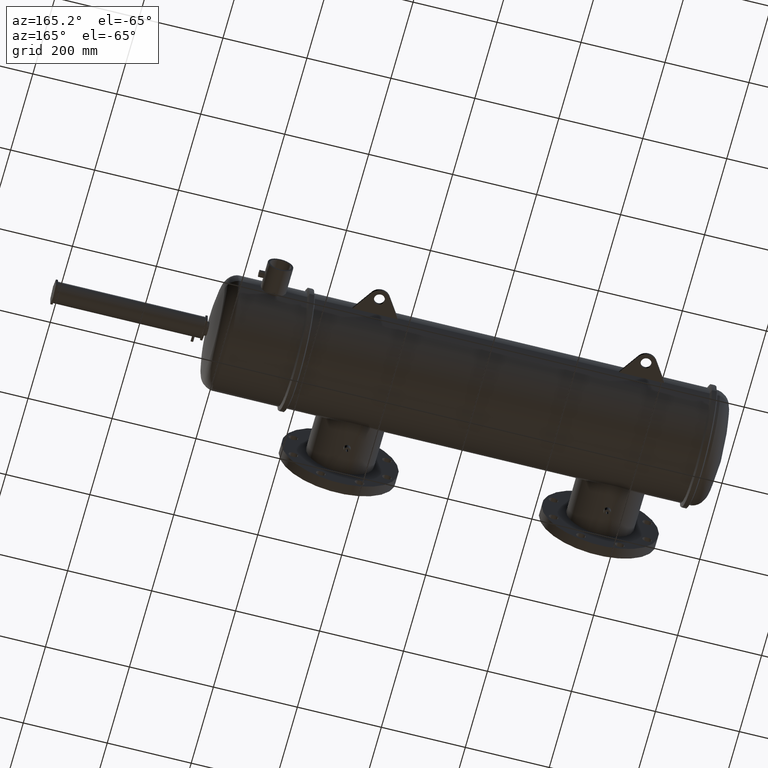
[diagram: clean part render]
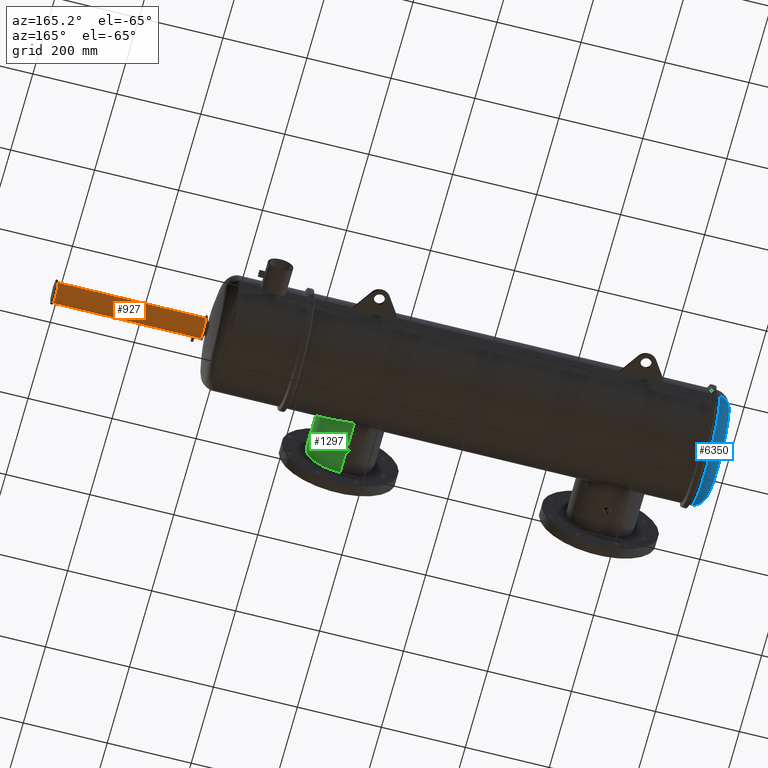
[diagram: same view with three faces highlighted in distinct colors, each labeled with its STEP entity id]
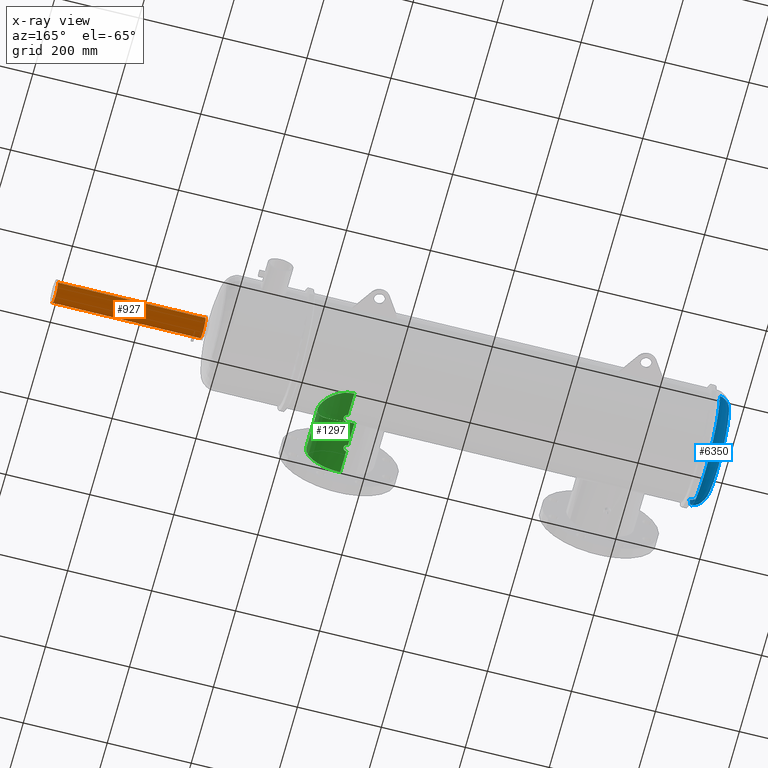
[diagram: x-ray of the same camera — body ghosted, the three highlighted faces saturated]
A machine part, auxiliary view with three faces highlighted in distinct colors.
The next image is the same camera in x-ray (body ghosted, the three faces saturated) — at least one of them is partly hidden behind the body in this view.
Their STEP definitions:

[orange] entity #927 — the highlighted cylindrical surface (edge-blend (fillet) strip) has radius 25.4 mm, axis along (-1, 0, -0).
#127 = DIRECTION ( 'NONE',  ( -1.000000000000000000, 8.273921759108280900E-016, -0.0000000000000000000 ) ) ;
#146 = VERTEX_POINT ( 'NONE', #2738 ) ;
#167 = VERTEX_POINT ( 'NONE', #3346 ) ;
#174 = DIRECTION ( 'NONE',  ( -1.000000000000000000, 8.273921759108280900E-016, -0.0000000000000000000 ) ) ;
#220 = DIRECTION ( 'NONE',  ( -1.000000000000000000, 8.273921759108280900E-016, -0.0000000000000000000 ) ) ;
#284 = ORIENTED_EDGE ( 'NONE', *, *, #7275, .F. ) ;
#563 = CARTESIAN_POINT ( 'NONE',  ( 49.36850591489619000, -0.9950547414637676000, -0.09943980638452125400 ) ) ;
#605 = CARTESIAN_POINT ( 'NONE',  ( 5.449043691375895500E-006, -1.000000725248668500, 0.0000000000000000000 ) ) ;
#612 = CARTESIAN_POINT ( 'NONE',  ( 49.41651493162598300, -0.9998983702911463700, -0.01642997529586135900 ) ) ;
#654 = CARTESIAN_POINT ( 'NONE',  ( 49.30870801714559100, -0.9922605637786310300, -0.1241893311279821200 ) ) ;
#766 = EDGE_LOOP ( 'NONE', ( #5126, #6116, #5081, #284, #2508, #1396, #2776 ) ) ;
#818 = DIRECTION ( 'NONE',  ( -1.000000000000000000, 8.273921759108280900E-016, -0.0000000000000000000 ) ) ;
#927 = ADVANCED_FACE ( 'NONE', ( #5557 ), #6459, .T. ) ;
#1004 = CARTESIAN_POINT ( 'NONE',  ( 49.29232609451075600, -0.9921574751184469900, -0.1250000000000234000 ) ) ;
#1131 = CARTESIAN_POINT ( 'NONE',  ( 49.40075779089180200, -0.9980547135683223200, -0.06273009445682405100 ) ) ;
#1233 = CARTESIAN_POINT ( 'NONE',  ( 49.32468735658665800, -0.9926529655812724700, -0.1210128343279488200 ) ) ;
#1396 = ORIENTED_EDGE ( 'NONE', *, *, #5294, .T. ) ;
#1669 = CARTESIAN_POINT ( 'NONE',  ( 49.21609964376966700, -0.9950583241277222200, -0.09940410716326034100 ) ) ;
#1699 = CARTESIAN_POINT ( 'NONE',  ( 49.37492721658028900, -0.9955734581031983100, -0.09417169494930381600 ) ) ;
#1777 = CARTESIAN_POINT ( 'NONE',  ( 5.449043693030681900E-006, 1.000001354509967100, 1.224648072632231200E-016 ) ) ;
#1793 = CARTESIAN_POINT ( 'NONE',  ( 49.41732609451078400, -1.000000725248709500, 0.0000000000000000000 ) ) ;
#1811 = DIRECTION ( 'NONE',  ( 0.0000000000000000000, -1.000000000000000000, 0.0000000000000000000 ) ) ;
#2161 = LINE ( 'NONE', #1777, #3898 ) ;
#2175 = DIRECTION ( 'NONE',  ( -8.273923440955007600E-016, -1.000000000000000000, 0.0000000000000000000 ) ) ;
#2276 = AXIS2_PLACEMENT_3D ( 'NONE', #4817, #174, #1811 ) ;
#2327 = CARTESIAN_POINT ( 'NONE',  ( 49.33262847311190300, -0.9929469716791553500, -0.1186074350496956500 ) ) ;
#2347 = CARTESIAN_POINT ( 'NONE',  ( 49.34775207863209800, -0.9936757248233146800, -0.1123386204924962800 ) ) ;
#2423 = CARTESIAN_POINT ( 'NONE',  ( 62.52232943053620300, 3.146305976155033700E-007, 0.0000000000000000000 ) ) ;
#2508 = ORIENTED_EDGE ( 'NONE', *, *, #2514, .F. ) ;
#2514 = EDGE_CURVE ( 'NONE', #6833, #3380, #3858, .T. ) ;
#2738 = CARTESIAN_POINT ( 'NONE',  ( 49.41732609451078400, -1.000000725248709500, 0.0000000000000000000 ) ) ;
#2743 = CARTESIAN_POINT ( 'NONE',  ( 49.19814792285784200, -0.9966007445920600500, -0.08259485666819259300 ) ) ;
#2754 = CARTESIAN_POINT ( 'NONE',  ( 49.20967148103270700, -0.9955778733371009000, -0.09412573099167048700 ) ) ;
#2771 = CARTESIAN_POINT ( 'NONE',  ( 49.16732609451073400, -1.000000725248709300, -1.709219332989494500E-024 ) ) ;
#2776 = ORIENTED_EDGE ( 'NONE', *, *, #4875, .F. ) ;
#2793 = CARTESIAN_POINT ( 'NONE',  ( 5.449043692203289100E-006, 3.146306493459850400E-007, 0.0000000000000000000 ) ) ;
#2876 = DIRECTION ( 'NONE',  ( -1.000000000000000000, 8.273921759108280900E-016, -0.0000000000000000000 ) ) ;
#2939 = LINE ( 'NONE', #605, #7382 ) ;
#2946 = CARTESIAN_POINT ( 'NONE',  ( 49.35492584848461200, -0.9941072896168456900, -0.1085030457183593000 ) ) ;
#3325 = CARTESIAN_POINT ( 'NONE',  ( 49.19297761983097000, -0.9971087956839260700, -0.07630443481552394400 ) ) ;
#3346 = CARTESIAN_POINT ( 'NONE',  ( 48.68032924161777000, 1.000001354509920700, 1.224648072632234400E-016 ) ) ;
#3349 = CARTESIAN_POINT ( 'NONE',  ( 49.16811814470897000, -0.9999007606014634900, -0.01628339001047994500 ) ) ;
#3380 = VERTEX_POINT ( 'NONE', #6989 ) ;
#3672 = EDGE_CURVE ( 'NONE', #7149, #167, #2161, .T. ) ;
#3755 = AXIS2_PLACEMENT_3D ( 'NONE', #2423, #220, #5320 ) ;
#3858 = B_SPLINE_CURVE_WITH_KNOTS ( 'NONE', 3,
 ( #2771, #6850, #3349, #7415, #3908, #3942, #4534, #3325, #2743, #2754, #1669, #5733, #6259, #6883, #7447, #5058, #6219, #1004 ),
 .UNSPECIFIED., .F., .F.,
 ( 4, 2, 2, 2, 2, 2, 2, 2, 4 ),
 ( 0.009936212067760566100, 0.01055735665145645300, 0.01117850123515234200, 0.01179964581884823000, 0.01242079040254411900, 0.01304193498624000600, 0.01366307956993589300, 0.01428422415363178300, 0.01490536873732767000 ),
 .UNSPECIFIED. ) ;
#3898 = VECTOR ( 'NONE', #4669, 39.37007874015748100 ) ;
#3908 = CARTESIAN_POINT ( 'NONE',  ( 49.17372709953984600, -0.9992159845160715200, -0.04031897075962189600 ) ) ;
#3942 = CARTESIAN_POINT ( 'NONE',  ( 49.17996209565167500, -0.9984951330865461400, -0.05536851787453043300 ) ) ;
#4003 = CARTESIAN_POINT ( 'NONE',  ( 49.38644225243540100, -0.9965949105088535200, -0.08266439568686818900 ) ) ;
#4534 = CARTESIAN_POINT ( 'NONE',  ( 49.18384580387187600, -0.9980600201729230600, -0.06264593152489533700 ) ) ;
#4548 = CARTESIAN_POINT ( 'NONE',  ( 62.52232943053620300, -1.000000725248726900, 0.0000000000000000000 ) ) ;
#4669 = DIRECTION ( 'NONE',  ( -1.000000000000000000, 8.273921759108280900E-016, -0.0000000000000000000 ) ) ;
#4691 = CARTESIAN_POINT ( 'NONE',  ( 49.41732609451079100, -1.000000725248709800, -0.008262034647050884800 ) ) ;
#4817 = CARTESIAN_POINT ( 'NONE',  ( 48.68032924161777000, 3.146306090682660300E-007, 0.0000000000000000000 ) ) ;
#4875 = EDGE_CURVE ( 'NONE', #167, #7329, #6940, .T. ) ;
#4899 = AXIS2_PLACEMENT_3D ( 'NONE', #2793, #2876, #2175 ) ;
#4972 = EDGE_CURVE ( 'NONE', #7149, #7193, #6485, .T. ) ;
#5058 = CARTESIAN_POINT ( 'NONE',  ( 49.27592469935665800, -0.9922608502591275800, -0.1241870744570196100 ) ) ;
#5081 = ORIENTED_EDGE ( 'NONE', *, *, #6511, .T. ) ;
#5126 = ORIENTED_EDGE ( 'NONE', *, *, #3672, .F. ) ;
#5184 = CARTESIAN_POINT ( 'NONE',  ( 49.41087871564846500, -0.9992104686006425500, -0.04045312961863948400 ) ) ;
#5263 = CARTESIAN_POINT ( 'NONE',  ( 49.29232609451075600, -0.9921574751184469900, -0.1250000000000234000 ) ) ;
#5294 = EDGE_CURVE ( 'NONE', #6833, #7329, #2939, .T. ) ;
#5320 = DIRECTION ( 'NONE',  ( 0.0000000000000000000, -1.000000000000000000, 0.0000000000000000000 ) ) ;
#5557 = FACE_OUTER_BOUND ( 'NONE', #766, .T. ) ;
#5733 = CARTESIAN_POINT ( 'NONE',  ( 49.22967632970282600, -0.9941104517357384200, -0.1084742148301695900 ) ) ;
#5737 = LINE ( 'NONE', #7141, #6460 ) ;
#5776 = CARTESIAN_POINT ( 'NONE',  ( 49.40463546286643700, -0.9984889740287349300, -0.05547779244085052800 ) ) ;
#5801 = CARTESIAN_POINT ( 'NONE',  ( 49.30058607050268200, -0.9921574751184369900, -0.1250000000000233700 ) ) ;
#5867 = CARTESIAN_POINT ( 'NONE',  ( 49.16732609451073400, -1.000000725248709300, -1.709219332989494500E-024 ) ) ;
#6116 = ORIENTED_EDGE ( 'NONE', *, *, #4972, .T. ) ;
#6219 = CARTESIAN_POINT ( 'NONE',  ( 49.28405866442297200, -0.9921574751184369900, -0.1250000000000234000 ) ) ;
#6259 = CARTESIAN_POINT ( 'NONE',  ( 49.23685311853952800, -0.9936782763883496000, -0.1123162398528202400 ) ) ;
#6373 = CARTESIAN_POINT ( 'NONE',  ( 49.41328625126970300, -0.9995024979554161200, -0.03257992985113031300 ) ) ;
#6459 = CYLINDRICAL_SURFACE ( 'NONE', #4899, 1.000001039879317800 ) ;
#6460 = VECTOR ( 'NONE', #818, 39.37007874015748100 ) ;
#6485 = CIRCLE ( 'NONE', #3755, 1.000001039879324400 ) ;
#6511 = EDGE_CURVE ( 'NONE', #7193, #146, #5737, .T. ) ;
#6541 = B_SPLINE_CURVE_WITH_KNOTS ( 'NONE', 3,
 ( #5263, #5801, #654, #1233, #2327, #2347, #2946, #563, #1699, #4003, #7006, #1131, #5776, #5184, #6373, #612, #4691, #1793 ),
 .UNSPECIFIED., .F., .F.,
 ( 4, 2, 2, 2, 2, 2, 2, 2, 4 ),
 ( 0.01490536873732767000, 0.01552595328347558000, 0.01614653782962349000, 0.01676712237577139900, 0.01738770692191930800, 0.01800829146806722000, 0.01862887601421512800, 0.01924946056036303700, 0.01987004510651094900 ),
 .UNSPECIFIED. ) ;
#6833 = VERTEX_POINT ( 'NONE', #5867 ) ;
#6850 = CARTESIAN_POINT ( 'NONE',  ( 49.16732609451075600, -1.000000725248709500, -0.008163877517370677500 ) ) ;
#6883 = CARTESIAN_POINT ( 'NONE',  ( 49.25199536146893600, -0.9929480522112960100, -0.1185985698484265700 ) ) ;
#6940 = CIRCLE ( 'NONE', #2276, 1.000001039879311300 ) ;
#6958 = CARTESIAN_POINT ( 'NONE',  ( 48.68032924161777000, -1.000000725248702200, 0.0000000000000000000 ) ) ;
#6989 = CARTESIAN_POINT ( 'NONE',  ( 49.29232609451075600, -0.9921574751184469900, -0.1250000000000234000 ) ) ;
#7006 = CARTESIAN_POINT ( 'NONE',  ( 49.39161453848500100, -0.9971027901885098900, -0.07638260550547561200 ) ) ;
#7141 = CARTESIAN_POINT ( 'NONE',  ( 5.449043691375895500E-006, -1.000000725248668500, 0.0000000000000000000 ) ) ;
#7149 = VERTEX_POINT ( 'NONE', #7357 ) ;
#7193 = VERTEX_POINT ( 'NONE', #4548 ) ;
#7275 = EDGE_CURVE ( 'NONE', #3380, #146, #6541, .T. ) ;
#7329 = VERTEX_POINT ( 'NONE', #6958 ) ;
#7357 = CARTESIAN_POINT ( 'NONE',  ( 62.52232943053620300, 1.000001354509922000, 1.224648072632235400E-016 ) ) ;
#7382 = VECTOR ( 'NONE', #127, 39.37007874015748100 ) ;
#7415 = CARTESIAN_POINT ( 'NONE',  ( 49.17132626125804500, -0.9995073167076743400, -0.03243152689931002400 ) ) ;
#7447 = CARTESIAN_POINT ( 'NONE',  ( 49.25993660543947800, -0.9926538510220791500, -0.1210056040970682300 ) ) ;

[blue] entity #6350 — the highlighted toroidal blend (fillet) surface has major radius 100.859 mm and minor (blend) radius 36.1885 mm.
#73 = AXIS2_PLACEMENT_3D ( 'NONE', #5469, #891, #5522 ) ;
#118 = CARTESIAN_POINT ( 'NONE',  ( 1.854132418735926000, 3.146306476508453700E-007, 0.0000000000000000000 ) ) ;
#168 = ORIENTED_EDGE ( 'NONE', *, *, #6571, .F. ) ;
#292 = ORIENTED_EDGE ( 'NONE', *, *, #2571, .T. ) ;
#442 = DIRECTION ( 'NONE',  ( -1.000000000000000000, 0.0000000000000000000, 0.0000000000000000000 ) ) ;
#891 = DIRECTION ( 'NONE',  ( -1.000000000000000000, 8.273921759108280900E-016, -0.0000000000000000000 ) ) ;
#920 = CARTESIAN_POINT ( 'NONE',  ( 0.4623204613081258700, 4.275378693401674600, 5.909168058887328900E-016 ) ) ;
#1095 = AXIS2_PLACEMENT_3D ( 'NONE', #2803, #1611, #442 ) ;
#1284 = CIRCLE ( 'NONE', #2012, 1.424746040561565300 ) ;
#1562 = TOROIDAL_SURFACE ( 'NONE', #2875, 3.970811874938392300, 1.424746040561565300 ) ;
#1571 = DIRECTION ( 'NONE',  ( -8.306638798094887700E-016, -1.000000000000000000, 0.0000000000000000000 ) ) ;
#1611 = DIRECTION ( 'NONE',  ( 0.0000000000000000000, -0.0000000000000000000, -1.000000000000000000 ) ) ;
#1714 = CARTESIAN_POINT ( 'NONE',  ( 1.854132418735929400, 3.970812189569040000, 4.862842052659602300E-016 ) ) ;
#2000 = CIRCLE ( 'NONE', #1095, 1.424746040561565300 ) ;
#2012 = AXIS2_PLACEMENT_3D ( 'NONE', #1714, #5708, #6344 ) ;
#2086 = DIRECTION ( 'NONE',  ( -1.000000000000000000, 8.273921759108280900E-016, -0.0000000000000000000 ) ) ;
#2144 = EDGE_CURVE ( 'NONE', #4115, #7214, #3447, .T. ) ;
#2203 = EDGE_CURVE ( 'NONE', #4115, #2436, #1284, .T. ) ;
#2436 = VERTEX_POINT ( 'NONE', #920 ) ;
#2472 = ORIENTED_EDGE ( 'NONE', *, *, #2144, .T. ) ;
#2571 = EDGE_CURVE ( 'NONE', #7214, #7139, #2000, .T. ) ;
#2632 = CIRCLE ( 'NONE', #2828, 4.275378378771026000 ) ;
#2731 = CARTESIAN_POINT ( 'NONE',  ( 1.613122852268290800, -5.375025101392909100, 0.0000000000000000000 ) ) ;
#2803 = CARTESIAN_POINT ( 'NONE',  ( 1.854132418735922700, -3.970811560307744500, 0.0000000000000000000 ) ) ;
#2828 = AXIS2_PLACEMENT_3D ( 'NONE', #3832, #2086, #1571 ) ;
#2842 = DIRECTION ( 'NONE',  ( -8.273921759108281900E-016, -1.000000000000000000, 0.0000000000000000000 ) ) ;
#2875 = AXIS2_PLACEMENT_3D ( 'NONE', #118, #3616, #2842 ) ;
#3415 = CARTESIAN_POINT ( 'NONE',  ( 1.613122852268299400, 5.375025730654204600, 6.582507671068919300E-016 ) ) ;
#3447 = CIRCLE ( 'NONE', #73, 5.375025416023556000 ) ;
#3565 = EDGE_LOOP ( 'NONE', ( #3837, #2472, #292, #168 ) ) ;
#3616 = DIRECTION ( 'NONE',  ( -1.000000000000000000, 8.273921759108280900E-016, -0.0000000000000000000 ) ) ;
#3832 = CARTESIAN_POINT ( 'NONE',  ( 0.4623204613081223200, 3.146306489634692500E-007, 0.0000000000000000000 ) ) ;
#3837 = ORIENTED_EDGE ( 'NONE', *, *, #2203, .F. ) ;
#4115 = VERTEX_POINT ( 'NONE', #3415 ) ;
#5469 = CARTESIAN_POINT ( 'NONE',  ( 1.613122852268295200, 3.146306480113043200E-007, 0.0000000000000000000 ) ) ;
#5522 = DIRECTION ( 'NONE',  ( -8.131974179754586500E-016, -1.000000000000000000, 0.0000000000000000000 ) ) ;
#5708 = DIRECTION ( 'NONE',  ( -1.013263179868759400E-031, -1.224646799147353200E-016, 1.000000000000000000 ) ) ;
#6195 = FACE_OUTER_BOUND ( 'NONE', #3565, .T. ) ;
#6344 = DIRECTION ( 'NONE',  ( 0.0000000000000000000, -1.000000000000000000, -1.224646799147353500E-016 ) ) ;
#6350 = ADVANCED_FACE ( 'NONE', ( #6195 ), #1562, .T. ) ;
#6500 = CARTESIAN_POINT ( 'NONE',  ( 0.4623204613081187700, -4.275378064140377400, 0.0000000000000000000 ) ) ;
#6571 = EDGE_CURVE ( 'NONE', #2436, #7139, #2632, .T. ) ;
#7139 = VERTEX_POINT ( 'NONE', #6500 ) ;
#7214 = VERTEX_POINT ( 'NONE', #2731 ) ;

[green] entity #1297 — the highlighted cylindrical surface (edge-blend (fillet) strip) has radius 81.2 mm, axis along (-0, 1, -0).
#15 = ORIENTED_EDGE ( 'NONE', *, *, #5243, .F. ) ;
#171 = CYLINDRICAL_SURFACE ( 'NONE', #2942, 3.196850393700789300 ) ;
#205 = CARTESIAN_POINT ( 'NONE',  ( 33.33232943053631200, -7.201850393700788700, -3.196850393700789300 ) ) ;
#206 = VERTEX_POINT ( 'NONE', #5825 ) ;
#227 = EDGE_CURVE ( 'NONE', #3114, #6141, #5658, .T. ) ;
#233 = CARTESIAN_POINT ( 'NONE',  ( 34.17743396979202000, -4.402556432365692300, -3.083580124801650300 ) ) ;
#266 = CARTESIAN_POINT ( 'NONE',  ( 35.32236593196217500, -4.757081112247762500, -2.502444377844878200 ) ) ;
#276 = VERTEX_POINT ( 'NONE', #3619 ) ;
#287 = CARTESIAN_POINT ( 'NONE',  ( 36.23617733061156800, -5.205963310003499900, -1.341077817316581400 ) ) ;
#307 = CARTESIAN_POINT ( 'NONE',  ( 36.44375229193885700, -5.324614034100153300, -0.7417455699139587900 ) ) ;
#336 = CARTESIAN_POINT ( 'NONE',  ( 35.03008622035600400, -4.641882063515920400, -2.710709605446172300 ) ) ;
#446 = CARTESIAN_POINT ( 'NONE',  ( 33.43600700507313000, -6.574576538852769000, -3.195228266450462800 ) ) ;
#466 = CARTESIAN_POINT ( 'NONE',  ( 33.63775292883607200, -6.776322551067003100, 3.182237363605440600 ) ) ;
#474 = CARTESIAN_POINT ( 'NONE',  ( 33.47514131099048000, -7.169201811425294200, 3.193718467427248100 ) ) ;
#484 = CARTESIAN_POINT ( 'NONE',  ( 33.47487524987863600, -6.591244271887513900, 3.193684393842002800 ) ) ;
#488 = VECTOR ( 'NONE', #7174, 39.37007874015748100 ) ;
#499 = CARTESIAN_POINT ( 'NONE',  ( 34.94490591898632900, -4.611271304731676700, 2.762291557859466000 ) ) ;
#517 = CARTESIAN_POINT ( 'NONE',  ( 33.64384200192538500, -6.796392814222444100, -3.181639430999907400 ) ) ;
#527 = CARTESIAN_POINT ( 'NONE',  ( 35.73104329966341200, -4.942041029849721500, 2.113918209518154800 ) ) ;
#539 = CARTESIAN_POINT ( 'NONE',  ( 33.50251315302307400, -6.606622961175211200, -3.192329255527682500 ) ) ;
#548 = CARTESIAN_POINT ( 'NONE',  ( 36.52641646857046700, -5.373364630755303600, 0.1356320342420152000 ) ) ;
#553 = CARTESIAN_POINT ( 'NONE',  ( 33.65417982423711200, -6.901012310683296600, 3.180607609212356300 ) ) ;
#558 = EDGE_CURVE ( 'NONE', #1105, #206, #7212, .T. ) ;
#622 = CARTESIAN_POINT ( 'NONE',  ( 36.52227491814217300, -5.370903458972454000, 0.2168932640493000700 ) ) ;
#681 = CARTESIAN_POINT ( 'NONE',  ( 33.63015203570734000, -7.003363979660667500, -3.182954972165793700 ) ) ;
#707 = CARTESIAN_POINT ( 'NONE',  ( 33.65417982423710400, -6.880000000000000800, -3.180607609212356300 ) ) ;
#743 = CARTESIAN_POINT ( 'NONE',  ( 33.54514580740550400, -7.122358002993008700, -3.189793548605989800 ) ) ;
#804 = CARTESIAN_POINT ( 'NONE',  ( 33.76176323062819100, -4.340968065330002900, -3.169682291454130100 ) ) ;
#825 = CARTESIAN_POINT ( 'NONE',  ( 34.22862763548323500, -4.412681033808317100, -3.069091245520535200 ) ) ;
#881 = CARTESIAN_POINT ( 'NONE',  ( 36.50214905507358800, -5.358968000436587600, -0.4283726190292238000 ) ) ;
#887 = ORIENTED_EDGE ( 'NONE', *, *, #558, .F. ) ;
#900 = CARTESIAN_POINT ( 'NONE',  ( 36.41738923514787300, -5.309216897676160200, -0.8447811702645672300 ) ) ;
#937 = LINE ( 'NONE', #4172, #3547 ) ;
#1009 = CARTESIAN_POINT ( 'NONE',  ( 33.62564620779822600, -6.747093428291039500, 3.183368363206715100 ) ) ;
#1033 = CARTESIAN_POINT ( 'NONE',  ( 33.37466608681311400, -6.560252928204676000, -3.196636695386061000 ) ) ;
#1051 = CARTESIAN_POINT ( 'NONE',  ( 33.40541501507666300, -7.193618045887612700, 3.196031428531877200 ) ) ;
#1067 = CARTESIAN_POINT ( 'NONE',  ( 35.20258934707638300, -4.707714968915731800, 2.594695052599537800 ) ) ;
#1078 = CARTESIAN_POINT ( 'NONE',  ( 33.57492869840734800, -6.667433184451598800, 3.187667625067632600 ) ) ;
#1085 = CARTESIAN_POINT ( 'NONE',  ( 36.52917982423710400, -5.375007825107895900, 0.0000000000000000000 ) ) ;
#1088 = CARTESIAN_POINT ( 'NONE',  ( 33.41561998920442300, -7.191066097748557000, 3.195781212052061000 ) ) ;
#1105 = VERTEX_POINT ( 'NONE', #1516 ) ;
#1116 = CARTESIAN_POINT ( 'NONE',  ( 36.25698515119475500, -5.217679610351180700, 1.291906982343548500 ) ) ;
#1143 = CARTESIAN_POINT ( 'NONE',  ( 36.31852845076420500, -5.252341568898184000, 1.146122608671361200 ) ) ;
#1196 = CARTESIAN_POINT ( 'NONE',  ( 33.33232943053631200, -6.558149606299212800, -3.196850393700789300 ) ) ;
#1240 = CARTESIAN_POINT ( 'NONE',  ( 33.44589587744521000, -7.181333039538771800, -3.194847441441249100 ) ) ;
#1265 = CARTESIAN_POINT ( 'NONE',  ( 33.49360924288033200, -7.159318733093289900, -3.192827613622825300 ) ) ;
#1289 = CARTESIAN_POINT ( 'NONE',  ( 36.52917982423710400, -5.375007825107895900, 0.0000000000000000000 ) ) ;
#1297 = ADVANCED_FACE ( 'NONE', ( #6309 ), #171, .T. ) ;
#1343 = CARTESIAN_POINT ( 'NONE',  ( 36.48613228160733300, -5.349489209022535400, -0.5335412725570617400 ) ) ;
#1358 = CARTESIAN_POINT ( 'NONE',  ( 33.46777636674334400, -4.323017353669503600, -3.194093555335283600 ) ) ;
#1387 = CARTESIAN_POINT ( 'NONE',  ( 35.72936033069432700, -4.940991794519953300, -2.117678719330097400 ) ) ;
#1412 = CARTESIAN_POINT ( 'NONE',  ( 34.38076399834130100, -4.445251050365124400, -3.021905660341535100 ) ) ;
#1433 = CARTESIAN_POINT ( 'NONE',  ( 34.47903310752774800, -4.469605187934524400, -2.985909392379095400 ) ) ;
#1516 = CARTESIAN_POINT ( 'NONE',  ( 36.52917982423710400, -5.375007825107895900, 0.0000000000000000000 ) ) ;
#1537 = CARTESIAN_POINT ( 'NONE',  ( 35.66205765722769900, -4.908928085219284500, 2.189713408698171100 ) ) ;
#1598 = CARTESIAN_POINT ( 'NONE',  ( 33.35333676532394500, -6.558149606299212800, 3.196850393700788800 ) ) ;
#1609 = CARTESIAN_POINT ( 'NONE',  ( 33.58815037327517000, -7.076446998135071300, 3.186620063515345000 ) ) ;
#1624 = CARTESIAN_POINT ( 'NONE',  ( 35.44169094797655400, -4.807825875324456700, 2.404335654029067500 ) ) ;
#1642 = CARTESIAN_POINT ( 'NONE',  ( 33.65417982423710400, -6.880000000000000800, -3.180607609212356300 ) ) ;
#1674 = CARTESIAN_POINT ( 'NONE',  ( 33.49350487891438600, -6.601213886868045200, -3.192798431218757400 ) ) ;
#1676 = CARTESIAN_POINT ( 'NONE',  ( 33.41593670423071000, -6.568487448130811800, 3.195823533043302700 ) ) ;
#1707 = CARTESIAN_POINT ( 'NONE',  ( 36.23518000858609200, -5.205481669030823400, 1.340172605830954700 ) ) ;
#1789 = CARTESIAN_POINT ( 'NONE',  ( 33.63723429991515700, -6.983594359534476000, -3.182278260266330400 ) ) ;
#1840 = CARTESIAN_POINT ( 'NONE',  ( 33.60578639529694600, -7.050061775186772000, -3.185138705787140100 ) ) ;
#1845 = CARTESIAN_POINT ( 'NONE',  ( 33.33232943053631200, -4.852736867747366100E-031, 3.196850393700789300 ) ) ;
#1858 = CARTESIAN_POINT ( 'NONE',  ( 33.65214098856307600, -6.921915169517069100, -3.180815963862251700 ) ) ;
#1860 = ORIENTED_EDGE ( 'NONE', *, *, #2010, .F. ) ;
#1904 = CARTESIAN_POINT ( 'NONE',  ( 35.28181455462473800, -4.740245437569321900, -2.534166756466002200 ) ) ;
#1926 = DIRECTION ( 'NONE',  ( -0.0000000000000000000, 1.000000000000000000, -0.0000000000000000000 ) ) ;
#1933 = ORIENTED_EDGE ( 'NONE', *, *, #227, .T. ) ;
#1940 = CARTESIAN_POINT ( 'NONE',  ( 33.54856482875877100, -4.326051131136281000, -3.189984793770964400 ) ) ;
#1944 = CARTESIAN_POINT ( 'NONE',  ( 33.33232943053631200, -4.852736867747366100E-031, 3.196850393700789300 ) ) ;
#1980 = CARTESIAN_POINT ( 'NONE',  ( 35.44102330997347400, -4.807527468887666800, -2.404941863864638000 ) ) ;
#2010 = EDGE_CURVE ( 'NONE', #2187, #6863, #4834, .T. ) ;
#2011 = CARTESIAN_POINT ( 'NONE',  ( 36.29734212203274500, -5.240407729234694200, -1.196367273775594400 ) ) ;
#2123 = CARTESIAN_POINT ( 'NONE',  ( 33.33232943053631200, -4.852736867747366100E-031, 0.0000000000000000000 ) ) ;
#2134 = CARTESIAN_POINT ( 'NONE',  ( 33.65417982423710400, -6.880000000000000800, 3.180607609212356300 ) ) ;
#2156 = CARTESIAN_POINT ( 'NONE',  ( 33.60570672078753800, -6.709816683877019000, 3.185145439012129700 ) ) ;
#2187 = VERTEX_POINT ( 'NONE', #5541 ) ;
#2196 = CARTESIAN_POINT ( 'NONE',  ( 33.33232943053631200, -6.558149606299212800, 3.196850393700789300 ) ) ;
#2205 = CARTESIAN_POINT ( 'NONE',  ( 34.02111500732848300, -4.375225417697532000, 3.122224169517532600 ) ) ;
#2229 = CARTESIAN_POINT ( 'NONE',  ( 36.03802869668179200, -5.097967704092583000, 1.705733621750331600 ) ) ;
#2255 = CARTESIAN_POINT ( 'NONE',  ( 33.60579486121041300, -7.050048109737396400, 3.185137977229634200 ) ) ;
#2328 = ORIENTED_EDGE ( 'NONE', *, *, #2795, .F. ) ;
#2336 = EDGE_CURVE ( 'NONE', #3114, #2756, #2547, .T. ) ;
#2437 = CARTESIAN_POINT ( 'NONE',  ( 33.65417982423710400, -6.880000000000000800, 3.180607609212356300 ) ) ;
#2498 = CARTESIAN_POINT ( 'NONE',  ( 36.19098835285978300, -5.180836372497331000, -1.434808289500559600 ) ) ;
#2520 = CARTESIAN_POINT ( 'NONE',  ( 34.07463183811957200, -4.383983842794683600, -3.109928488573085100 ) ) ;
#2547 = CIRCLE ( 'NONE', #7225, 3.196850393700789300 ) ;
#2563 = VECTOR ( 'NONE', #2871, 39.37007874015748100 ) ;
#2572 = CARTESIAN_POINT ( 'NONE',  ( 33.86695043315376100, -4.352711118237346400, -3.153616386850405500 ) ) ;
#2595 = CARTESIAN_POINT ( 'NONE',  ( 36.31662488377354200, -5.251347824838612500, -1.147443347465381300 ) ) ;
#2689 = DIRECTION ( 'NONE',  ( -0.0000000000000000000, 1.000000000000000000, -0.0000000000000000000 ) ) ;
#2719 = CARTESIAN_POINT ( 'NONE',  ( 33.62118374517904600, -7.022343909680400600, -3.183777699911040800 ) ) ;
#2729 = CARTESIAN_POINT ( 'NONE',  ( 33.62108531677569100, -6.737454504930411800, -3.183786660173848500 ) ) ;
#2745 = CARTESIAN_POINT ( 'NONE',  ( 33.33232943053631200, -4.320978748330736300, 3.196850393700789300 ) ) ;
#2753 = EDGE_CURVE ( 'NONE', #4709, #206, #937, .T. ) ;
#2756 = VERTEX_POINT ( 'NONE', #3075 ) ;
#2773 = CARTESIAN_POINT ( 'NONE',  ( 34.07344422767565800, -4.383781193235752700, 3.110214267648784500 ) ) ;
#2778 = CARTESIAN_POINT ( 'NONE',  ( 33.65207650759720800, -6.837663390296013300, 3.180822436108310800 ) ) ;
#2794 = CARTESIAN_POINT ( 'NONE',  ( 33.86397463882426000, -4.352328371482397700, 3.154145430295705900 ) ) ;
#2795 = EDGE_CURVE ( 'NONE', #2756, #5019, #5380, .T. ) ;
#2798 = CARTESIAN_POINT ( 'NONE',  ( 33.65417982423710400, -6.880000000000000800, 3.180607609212356300 ) ) ;
#2820 = ORIENTED_EDGE ( 'NONE', *, *, #2336, .F. ) ;
#2856 = CARTESIAN_POINT ( 'NONE',  ( 36.44308507795383200, -5.324224106822828000, 0.7444825928127591900 ) ) ;
#2871 = DIRECTION ( 'NONE',  ( -0.0000000000000000000, 1.000000000000000000, -0.0000000000000000000 ) ) ;
#2900 = CARTESIAN_POINT ( 'NONE',  ( 36.48551590511708300, -5.349125776193975700, 0.5370941122951401500 ) ) ;
#2906 = CARTESIAN_POINT ( 'NONE',  ( 33.61125960941381400, -7.040924078441321400, -3.184662495909091500 ) ) ;
#2942 = AXIS2_PLACEMENT_3D ( 'NONE', #2123, #2689, #4507 ) ;
#3005 = EDGE_CURVE ( 'NONE', #276, #6141, #3683, .T. ) ;
#3075 = CARTESIAN_POINT ( 'NONE',  ( 33.33232943053631200, -9.379999999999997200, 3.196850393700789300 ) ) ;
#3090 = CARTESIAN_POINT ( 'NONE',  ( 34.76257935479711100, -4.550742628932323600, -2.860893786293135800 ) ) ;
#3114 = VERTEX_POINT ( 'NONE', #5890 ) ;
#3119 = CARTESIAN_POINT ( 'NONE',  ( 36.09199370547526100, -5.126878351271823700, -1.617052488766159900 ) ) ;
#3141 = CARTESIAN_POINT ( 'NONE',  ( 35.51653560921126000, -4.841232357000868600, -2.336546488518449900 ) ) ;
#3177 = CARTESIAN_POINT ( 'NONE',  ( 33.33232943053631200, -4.320978748330735400, -3.196850393700789300 ) ) ;
#3303 = CARTESIAN_POINT ( 'NONE',  ( 33.62108249813616100, -6.737448652376633300, 3.183786917630765600 ) ) ;
#3311 = CARTESIAN_POINT ( 'NONE',  ( 34.76205377358530800, -4.550552916960153700, 2.861214057811235300 ) ) ;
#3321 = CARTESIAN_POINT ( 'NONE',  ( 33.65207474710261000, -6.837654088969512300, -3.180822611143346200 ) ) ;
#3329 = EDGE_CURVE ( 'NONE', #6863, #1105, #5869, .T. ) ;
#3352 = CARTESIAN_POINT ( 'NONE',  ( 34.22745307568795400, -4.412447084991268500, 3.069426412508181400 ) ) ;
#3370 = CARTESIAN_POINT ( 'NONE',  ( 33.35333203769408800, -6.558149606299213700, -3.196850393700790200 ) ) ;
#3393 = CARTESIAN_POINT ( 'NONE',  ( 33.57483256008671900, -7.092650875642970500, 3.187674053540087400 ) ) ;
#3401 = CARTESIAN_POINT ( 'NONE',  ( 33.47488105243704800, -6.591247065593148800, -3.193684139461243200 ) ) ;
#3511 = CARTESIAN_POINT ( 'NONE',  ( 36.50172326547107800, -5.358715930169902100, 0.4317316148196079200 ) ) ;
#3529 = CARTESIAN_POINT ( 'NONE',  ( 33.47512560767158600, -7.169209229355197400, -3.193719145521359200 ) ) ;
#3547 = VECTOR ( 'NONE', #7031, 39.37007874015748100 ) ;
#3559 = B_SPLINE_CURVE_WITH_KNOTS ( 'NONE', 3,
 ( #2437, #4417, #2778, #5314, #466, #1009, #3303, #5112, #2156, #6791, #1078, #5671, #5145, #5165, #6268, #484, #3933, #4525, #1676, #5693, #1598, #2196 ),
 .UNSPECIFIED., .F., .F.,
 ( 4, 2, 2, 2, 2, 2, 2, 2, 2, 2, 4 ),
 ( 0.01279044802759993600, 0.01438851300567797800, 0.01598657798375601900, 0.01678561047279497600, 0.01758464296183393300, 0.01918270793991173200, 0.02078077291798953100, 0.02157980540702857100, 0.02237883789606760800, 0.02397690287414564600, 0.02557496785222369100 ),
 .UNSPECIFIED. ) ;
#3580 = CARTESIAN_POINT ( 'NONE',  ( 33.35360452711567800, -7.201850393700787800, -3.196850393700788400 ) ) ;
#3604 = CARTESIAN_POINT ( 'NONE',  ( 33.65417982423710400, -6.901017400445299500, -3.180607609212355000 ) ) ;
#3619 = CARTESIAN_POINT ( 'NONE',  ( 33.65417982423710400, -6.880000000000000800, -3.180607609212356300 ) ) ;
#3679 = CARTESIAN_POINT ( 'NONE',  ( 35.82723909485285000, -4.989451634392121800, -1.999473723341362400 ) ) ;
#3683 = B_SPLINE_CURVE_WITH_KNOTS ( 'NONE', 3,
 ( #707, #3604, #1858, #4853, #5929, #1789, #681, #2719, #2906, #1840, #5870, #4200, #743, #4802, #1265, #3529, #1240, #4122, #5299, #4101, #6467, #3580, #5210 ),
 .UNSPECIFIED., .F., .F.,
 ( 4, 2, 2, 1, 2, 2, 2, 2, 2, 2, 2, 4 ),
 ( 0.02557496257974635500, 0.02717379284572715000, 0.02797320797871750600, 0.02877262311170786200, 0.02957203824469821800, 0.03037145337768857500, 0.03197028364366928700, 0.03356911390965000600, 0.03516794417563071800, 0.03596735930862107700, 0.03676677444161143000, 0.03836560470759214200 ),
 .UNSPECIFIED. ) ;
#3685 = DIRECTION ( 'NONE',  ( 1.000000000000000000, 0.0000000000000000000, 0.0000000000000000000 ) ) ;
#3748 = CARTESIAN_POINT ( 'NONE',  ( 36.35292271461096200, -5.272060166575134800, -1.048170692233893100 ) ) ;
#3756 = CARTESIAN_POINT ( 'NONE',  ( 33.33232943053631200, -9.379999999999997200, 0.0000000000000000000 ) ) ;
#3865 = EDGE_LOOP ( 'NONE', ( #2820, #1933, #4427, #6329, #6614, #887, #7456, #1860, #4057, #15, #2328 ) ) ;
#3873 = CARTESIAN_POINT ( 'NONE',  ( 35.86214447512192300, -5.006758123534425800, 1.957122016668238200 ) ) ;
#3933 = CARTESIAN_POINT ( 'NONE',  ( 33.46522946194487200, -6.586680230149426900, 3.194101611701736700 ) ) ;
#3943 = CARTESIAN_POINT ( 'NONE',  ( 34.66832484761322100, -4.521862738430088200, 2.906165215051325300 ) ) ;
#3948 = CARTESIAN_POINT ( 'NONE',  ( 33.33232943053631200, -7.201850393700788700, 3.196850393700789300 ) ) ;
#3956 = CARTESIAN_POINT ( 'NONE',  ( 33.62564932620073000, -6.747100249821842000, -3.183368075929998500 ) ) ;
#3984 = CARTESIAN_POINT ( 'NONE',  ( 36.16586264531451900, -5.167139998950562900, 1.481092030653899900 ) ) ;
#3988 = CARTESIAN_POINT ( 'NONE',  ( 33.65214200435863000, -6.921911522221268600, 3.180815864169129100 ) ) ;
#4057 = ORIENTED_EDGE ( 'NONE', *, *, #7143, .F. ) ;
#4101 = CARTESIAN_POINT ( 'NONE',  ( 33.40540059467748100, -7.193621401692073600, -3.196031758143524900 ) ) ;
#4122 = CARTESIAN_POINT ( 'NONE',  ( 33.43584425025680000, -7.184933046238056100, -3.195190072466210100 ) ) ;
#4172 = CARTESIAN_POINT ( 'NONE',  ( 33.33232943053631200, -4.852736867747366100E-031, -3.196850393700789300 ) ) ;
#4200 = CARTESIAN_POINT ( 'NONE',  ( 33.57481945145783400, -7.092665939049883400, -3.187675059152923900 ) ) ;
#4237 = CARTESIAN_POINT ( 'NONE',  ( 36.52917982423710400, -5.375007825107896800, -0.1084994201762312900 ) ) ;
#4255 = CARTESIAN_POINT ( 'NONE',  ( 34.66994184621549400, -4.522349848759430000, -2.905404833709805100 ) ) ;
#4281 = CARTESIAN_POINT ( 'NONE',  ( 36.52367204299078200, -5.371726839633670800, -0.2158515294546040100 ) ) ;
#4313 = CARTESIAN_POINT ( 'NONE',  ( 34.94265200218144700, -4.610507821929783900, -2.763546510835108700 ) ) ;
#4337 = CARTESIAN_POINT ( 'NONE',  ( 35.85901244859849200, -5.005424697759341500, -1.959178373444233400 ) ) ;
#4417 = CARTESIAN_POINT ( 'NONE',  ( 33.65417982423710400, -6.858997428243947400, 3.180607609212356700 ) ) ;
#4427 = ORIENTED_EDGE ( 'NONE', *, *, #3005, .F. ) ;
#4463 = CARTESIAN_POINT ( 'NONE',  ( 35.62649174083491500, -4.892136429503371400, 2.226950908192078000 ) ) ;
#4481 = CARTESIAN_POINT ( 'NONE',  ( 33.58824135555158800, -6.683694237581454100, -3.186612331989799900 ) ) ;
#4504 = CARTESIAN_POINT ( 'NONE',  ( 33.33232943053631200, -6.558149606299212800, -3.196850393700789300 ) ) ;
#4507 = DIRECTION ( 'NONE',  ( 0.0000000000000000000, 0.0000000000000000000, 1.000000000000000000 ) ) ;
#4525 = CARTESIAN_POINT ( 'NONE',  ( 33.43599779033651500, -6.574573304482677300, 3.195228575385139700 ) ) ;
#4535 = CARTESIAN_POINT ( 'NONE',  ( 35.03289716489992100, -4.642912742349666100, 2.708945173354822400 ) ) ;
#4598 = CARTESIAN_POINT ( 'NONE',  ( 36.18964809824004900, -5.180228557972238700, 1.434689556348453000 ) ) ;
#4629 = CARTESIAN_POINT ( 'NONE',  ( 33.37454062095601200, -7.199759774085455500, 3.196637995709422900 ) ) ;
#4709 = VERTEX_POINT ( 'NONE', #1196 ) ;
#4744 = VECTOR ( 'NONE', #1926, 39.37007874015748100 ) ;
#4802 = CARTESIAN_POINT ( 'NONE',  ( 33.52859202289960200, -7.135951416025400300, -3.190868274156894100 ) ) ;
#4834 = LINE ( 'NONE', #1845, #4744 ) ;
#4853 = CARTESIAN_POINT ( 'NONE',  ( 33.64595245898076600, -6.953078255959837000, -3.181430076704518900 ) ) ;
#4856 = CARTESIAN_POINT ( 'NONE',  ( 33.60210001668402700, -4.329066500267532400, -3.185896728549593600 ) ) ;
#4917 = CARTESIAN_POINT ( 'NONE',  ( 36.36996563833403000, -5.281848521732710500, -0.9977313790649663400 ) ) ;
#5019 = VERTEX_POINT ( 'NONE', #6665 ) ;
#5031 = CARTESIAN_POINT ( 'NONE',  ( 34.37834828597172500, -4.444699688244354800, 3.022711796154010900 ) ) ;
#5062 = CARTESIAN_POINT ( 'NONE',  ( 33.46523623002040200, -6.586683324519115400, -3.194101327599991400 ) ) ;
#5096 = CARTESIAN_POINT ( 'NONE',  ( 33.43585316140996600, -7.184929945196858900, 3.195189776776049800 ) ) ;
#5112 = CARTESIAN_POINT ( 'NONE',  ( 33.61111575506581800, -6.718824921241235000, 3.184675125688722500 ) ) ;
#5118 = VERTEX_POINT ( 'NONE', #2134 ) ;
#5128 = CARTESIAN_POINT ( 'NONE',  ( 35.28428834816370600, -4.740878325206647800, 2.533790112141898600 ) ) ;
#5142 = CARTESIAN_POINT ( 'NONE',  ( 33.65417982423709700, -6.858992660815059300, -3.180607609212355000 ) ) ;
#5145 = CARTESIAN_POINT ( 'NONE',  ( 33.52863568523669400, -6.624088446970969100, 3.190865206730253000 ) ) ;
#5157 = CARTESIAN_POINT ( 'NONE',  ( 36.52917982423710400, -5.375007825107895900, 0.02706426674607771700 ) ) ;
#5161 = CARTESIAN_POINT ( 'NONE',  ( 33.64595068205146300, -6.953086469743167800, 3.181430252482041700 ) ) ;
#5165 = CARTESIAN_POINT ( 'NONE',  ( 33.50250294255111800, -6.606616661252704900, 3.192329797166368000 ) ) ;
#5175 = CARTESIAN_POINT ( 'NONE',  ( 36.35458160841977800, -5.272970534410854200, 1.047328046668175800 ) ) ;
#5177 = CARTESIAN_POINT ( 'NONE',  ( 33.52861062267204800, -7.135937276759023000, 3.190867132652787800 ) ) ;
#5189 = CARTESIAN_POINT ( 'NONE',  ( 33.33232943053631200, -4.852736867747366100E-031, -3.196850393700789300 ) ) ;
#5210 = CARTESIAN_POINT ( 'NONE',  ( 33.33232943053631200, -7.201850393700788700, -3.196850393700789300 ) ) ;
#5230 = CARTESIAN_POINT ( 'NONE',  ( 36.52745226837650700, -5.373980491339524200, 0.1085285853650725800 ) ) ;
#5243 = EDGE_CURVE ( 'NONE', #5019, #5118, #5371, .T. ) ;
#5258 = CARTESIAN_POINT ( 'NONE',  ( 33.33232943053631200, -4.320978748330736300, 3.196850393700789300 ) ) ;
#5299 = CARTESIAN_POINT ( 'NONE',  ( 33.41560666963992800, -7.191069738221288300, -3.195781566148673500 ) ) ;
#5314 = CARTESIAN_POINT ( 'NONE',  ( 33.64384080116315800, -6.796386318222467100, 3.181639550500523100 ) ) ;
#5371 = B_SPLINE_CURVE_WITH_KNOTS ( 'NONE', 3,
 ( #3948, #5763, #4629, #1051, #1088, #5096, #6895, #474, #6253, #5177, #6323, #3393, #1609, #2255, #7442, #6341, #6358, #7477, #5727, #5161, #3988, #553, #2798 ),
 .UNSPECIFIED., .F., .F.,
 ( 4, 2, 2, 2, 2, 2, 2, 2, 1, 2, 2, 4 ),
 ( 0.0000000000000000000, 0.001598806003450253200, 0.002398209005175379800, 0.003197612006900506500, 0.004796418010350422100, 0.006395224013800338200, 0.007994030017250256000, 0.008793433018975213600, 0.009592836020700171200, 0.01039223902242512900, 0.01119164202415008600, 0.01279044802759993600 ),
 .UNSPECIFIED. ) ;
#5380 = LINE ( 'NONE', #1944, #488 ) ;
#5413 = CARTESIAN_POINT ( 'NONE',  ( 35.66070454769300800, -4.907963401219848100, -2.192914826840135500 ) ) ;
#5541 = CARTESIAN_POINT ( 'NONE',  ( 33.33232943053631200, -6.558149606299212800, 3.196850393700789300 ) ) ;
#5624 = CARTESIAN_POINT ( 'NONE',  ( 35.92333395407638400, -5.038032420684773500, 1.875374966822520600 ) ) ;
#5636 = CARTESIAN_POINT ( 'NONE',  ( 33.61112088175577400, -6.718833915697290500, -3.184674675075270600 ) ) ;
#5658 = LINE ( 'NONE', #5189, #2563 ) ;
#5671 = CARTESIAN_POINT ( 'NONE',  ( 33.54488184454933000, -6.637388114179878500, 3.189812026432457000 ) ) ;
#5693 = CARTESIAN_POINT ( 'NONE',  ( 33.37467531185818400, -6.560254675527948700, 3.196636522487824800 ) ) ;
#5702 = CARTESIAN_POINT ( 'NONE',  ( 33.43972436568764600, -4.320978748330738000, 3.196850393700790600 ) ) ;
#5727 = CARTESIAN_POINT ( 'NONE',  ( 33.64335813879937800, -6.963425580064067000, 3.181685565877160100 ) ) ;
#5742 = CARTESIAN_POINT ( 'NONE',  ( 33.52864881370113200, -6.624098278548252100, -3.190864409696632100 ) ) ;
#5763 = CARTESIAN_POINT ( 'NONE',  ( 33.35361427067454800, -7.201850393700788700, 3.196850393700789300 ) ) ;
#5825 = CARTESIAN_POINT ( 'NONE',  ( 33.33232943053631200, -4.320978748330735400, -3.196850393700789300 ) ) ;
#5834 = CARTESIAN_POINT ( 'NONE',  ( 36.09153434714475800, -5.126630718330822000, 1.617840300870334600 ) ) ;
#5869 = B_SPLINE_CURVE_WITH_KNOTS ( 'NONE', 3,
 ( #2745, #5702, #7397, #6250, #2794, #2205, #2773, #6854, #3352, #5031, #7417, #3943, #3311, #499, #4535, #1067, #5128, #1624, #6876, #4463, #1537, #527, #6779, #3873, #5624, #2229, #5834, #3984, #4598, #1707, #1116, #1143, #5175, #6337, #2856, #2900, #3511, #7474, #622, #548, #5230, #6318, #5157, #1085 ),
 .UNSPECIFIED., .F., .F.,
 ( 4, 2, 2, 2, 2, 2, 2, 2, 2, 2, 2, 2, 2, 2, 2, 2, 2, 2, 2, 2, 2, 4 ),
 ( 0.3903214502092468600, 0.3984416243981669900, 0.4065617985870871900, 0.4106218856815472800, 0.4146819727760073800, 0.4228021469649272400, 0.4309223211538471000, 0.4390424953427669600, 0.4471626695316868700, 0.4552828437206067300, 0.4593429308150666600, 0.4634030179095265900, 0.4715231920984465100, 0.4796433662873663700, 0.4837034533818261900, 0.4877635404762861200, 0.4958837146652059200, 0.5040038888541258400, 0.5121240630430455900, 0.5161841501375055200, 0.5182141936847355400, 0.5202442372319654500 ),
 .UNSPECIFIED. ) ;
#5870 = CARTESIAN_POINT ( 'NONE',  ( 33.58813913892945600, -7.076461805801650400, -3.186620972236106700 ) ) ;
#5890 = CARTESIAN_POINT ( 'NONE',  ( 33.33232943053631200, -9.379999999999997200, -3.196850393700789300 ) ) ;
#5929 = CARTESIAN_POINT ( 'NONE',  ( 33.64335886920923000, -6.963423371887534700, -3.181685495678890700 ) ) ;
#5984 = CARTESIAN_POINT ( 'NONE',  ( 35.95094234112165300, -5.052462327706702900, -1.834505902362861600 ) ) ;
#6063 = CARTESIAN_POINT ( 'NONE',  ( 35.15750440542557700, -4.690477508541230900, -2.625110818884778500 ) ) ;
#6079 = CARTESIAN_POINT ( 'NONE',  ( 33.44076590691732800, -4.322254278984320100, -3.195125735524909900 ) ) ;
#6141 = VERTEX_POINT ( 'NONE', #205 ) ;
#6210 = EDGE_CURVE ( 'NONE', #4709, #276, #6380, .T. ) ;
#6221 = CARTESIAN_POINT ( 'NONE',  ( 33.57494174115366500, -6.667448066638607800, -3.187666628222275200 ) ) ;
#6250 = CARTESIAN_POINT ( 'NONE',  ( 33.75856809969454300, -4.340662264492873000, 3.170100358880454800 ) ) ;
#6253 = CARTESIAN_POINT ( 'NONE',  ( 33.49362691639764500, -7.159308641248106400, 3.192826723404335300 ) ) ;
#6268 = CARTESIAN_POINT ( 'NONE',  ( 33.49349592041804900, -6.601208781219807700, 3.192798878824210100 ) ) ;
#6309 = FACE_OUTER_BOUND ( 'NONE', #3865, .T. ) ;
#6318 = CARTESIAN_POINT ( 'NONE',  ( 36.52883394604410200, -5.374802088407959000, 0.05428890372421434100 ) ) ;
#6323 = CARTESIAN_POINT ( 'NONE',  ( 33.54516251629012700, -7.122343228421969200, 3.189792425388047200 ) ) ;
#6329 = ORIENTED_EDGE ( 'NONE', *, *, #6210, .F. ) ;
#6337 = CARTESIAN_POINT ( 'NONE',  ( 36.41685995080256800, -5.308911238463286600, 0.8465079642891649700 ) ) ;
#6341 = CARTESIAN_POINT ( 'NONE',  ( 33.62119047006125100, -7.022330209863564000, 3.183777088530061600 ) ) ;
#6358 = CARTESIAN_POINT ( 'NONE',  ( 33.63015649406285200, -7.003352608965343500, 3.182954566821881900 ) ) ;
#6380 = B_SPLINE_CURVE_WITH_KNOTS ( 'NONE', 3,
 ( #4504, #3370, #1033, #6835, #446, #5062, #3401, #1674, #539, #5742, #7427, #6221, #4481, #7455, #5636, #2729, #3956, #6807, #517, #3321, #5142, #1642 ),
 .UNSPECIFIED., .F., .F.,
 ( 4, 2, 2, 2, 2, 2, 2, 2, 2, 2, 4 ),
 ( 0.01279044347272631800, 0.01438850836110334100, 0.01598657324948036400, 0.01678560569366904400, 0.01758463813785772500, 0.01918270302623536000, 0.02078076791461299500, 0.02157980035880190500, 0.02237883280299081400, 0.02397689769136858400, 0.02557496257974635500 ),
 .UNSPECIFIED. ) ;
#6467 = CARTESIAN_POINT ( 'NONE',  ( 33.37452630566880900, -7.199761646333612900, -3.196638184245774700 ) ) ;
#6579 = CARTESIAN_POINT ( 'NONE',  ( 35.19935343947541600, -4.706932465021384200, -2.595518204263739000 ) ) ;
#6605 = CARTESIAN_POINT ( 'NONE',  ( 33.38658030096415500, -4.321234400072773600, -3.196504931684191600 ) ) ;
#6614 = ORIENTED_EDGE ( 'NONE', *, *, #2753, .T. ) ;
#6647 = CARTESIAN_POINT ( 'NONE',  ( 34.02293616033831100, -4.375517026496663900, -3.121815282410802100 ) ) ;
#6665 = CARTESIAN_POINT ( 'NONE',  ( 33.33232943053631200, -7.201850393700788700, 3.196850393700789300 ) ) ;
#6687 = CARTESIAN_POINT ( 'NONE',  ( 33.35939737169653800, -4.320978748330738000, -3.196850393700790200 ) ) ;
#6779 = CARTESIAN_POINT ( 'NONE',  ( 35.76454692208662300, -4.958400984951477000, 2.075278316409666000 ) ) ;
#6791 = CARTESIAN_POINT ( 'NONE',  ( 33.58823151263893400, -6.683681095545136200, 3.186613131084533800 ) ) ;
#6807 = CARTESIAN_POINT ( 'NONE',  ( 33.63775617660652300, -6.776331807342373300, -3.182237052113132700 ) ) ;
#6835 = CARTESIAN_POINT ( 'NONE',  ( 33.41594318418982800, -6.568488647740804400, -3.195823414231984100 ) ) ;
#6854 = CARTESIAN_POINT ( 'NONE',  ( 34.17654443116378400, -4.402384054487630900, 3.083826351456989900 ) ) ;
#6863 = VERTEX_POINT ( 'NONE', #5258 ) ;
#6876 = CARTESIAN_POINT ( 'NONE',  ( 35.51739407711896500, -4.841612246421657800, 2.335786673715873500 ) ) ;
#6895 = CARTESIAN_POINT ( 'NONE',  ( 33.44590567827575700, -7.181329426253187300, 3.194847099052514000 ) ) ;
#7031 = DIRECTION ( 'NONE',  ( -0.0000000000000000000, 1.000000000000000000, -0.0000000000000000000 ) ) ;
#7143 = EDGE_CURVE ( 'NONE', #5118, #2187, #3559, .T. ) ;
#7153 = CARTESIAN_POINT ( 'NONE',  ( 36.03818794361980300, -5.098045469009901100, -1.705565687158617100 ) ) ;
#7160 = DIRECTION ( 'NONE',  ( 1.052735257674089800E-016, -1.000000000000000000, 0.0000000000000000000 ) ) ;
#7174 = DIRECTION ( 'NONE',  ( -0.0000000000000000000, 1.000000000000000000, -0.0000000000000000000 ) ) ;
#7201 = CARTESIAN_POINT ( 'NONE',  ( 35.92083416051293900, -5.036914338012062200, -1.876739256163221000 ) ) ;
#7212 = B_SPLINE_CURVE_WITH_KNOTS ( 'NONE', 3,
 ( #1289, #4237, #4281, #881, #1343, #307, #900, #4917, #3748, #2595, #2011, #287, #2498, #3119, #7153, #5984, #7201, #4337, #3679, #1387, #5413, #3141, #1980, #266, #1904, #6579, #6063, #336, #4313, #3090, #4255, #1433, #1412, #825, #233, #2520, #6647, #2572, #804, #4856, #1940, #1358, #6079, #6605, #6687, #3177 ),
 .UNSPECIFIED., .F., .F.,
 ( 4, 2, 2, 2, 2, 2, 2, 2, 2, 2, 2, 2, 2, 2, 2, 2, 2, 2, 2, 2, 2, 2, 4 ),
 ( 0.0000000000000000000, 0.008138352680065645900, 0.01627670536013129200, 0.02441505804019692200, 0.02848423438022973700, 0.03255341072026254900, 0.04069176340032802000, 0.04883011608039349700, 0.05289929242042632600, 0.05696846876045914800, 0.06510682144052482000, 0.07324517412059049200, 0.07731435046062330700, 0.08138352680065613600, 0.08952187948072153100, 0.09766023216078692500, 0.1057985848408523300, 0.1098677611808850500, 0.1139369375209177600, 0.1220752902009834700, 0.1261444665410164900, 0.1281790547110331600, 0.1302136428810498300 ),
 .UNSPECIFIED. ) ;
#7225 = AXIS2_PLACEMENT_3D ( 'NONE', #3756, #7160, #3685 ) ;
#7397 = CARTESIAN_POINT ( 'NONE',  ( 33.54644297721056000, -4.324987180563632600, 3.191452816130977900 ) ) ;
#7417 = CARTESIAN_POINT ( 'NONE',  ( 34.47650921775791500, -4.468949125861121800, 2.986893474186580000 ) ) ;
#7427 = CARTESIAN_POINT ( 'NONE',  ( 33.54489666697712400, -6.637401097218743800, -3.189811034518655200 ) ) ;
#7442 = CARTESIAN_POINT ( 'NONE',  ( 33.61126792286796700, -7.040909621499087800, 3.184661766514636800 ) ) ;
#7455 = CARTESIAN_POINT ( 'NONE',  ( 33.60571303946753800, -6.709826924154584500, -3.185144894519718500 ) ) ;
#7456 = ORIENTED_EDGE ( 'NONE', *, *, #3329, .F. ) ;
#7474 = CARTESIAN_POINT ( 'NONE',  ( 36.51812497275040700, -5.368438370084481500, 0.2710322121571807600 ) ) ;
#7477 = CARTESIAN_POINT ( 'NONE',  ( 33.63723604820897600, -6.983588798970917100, 3.182278091552381800 ) ) ;